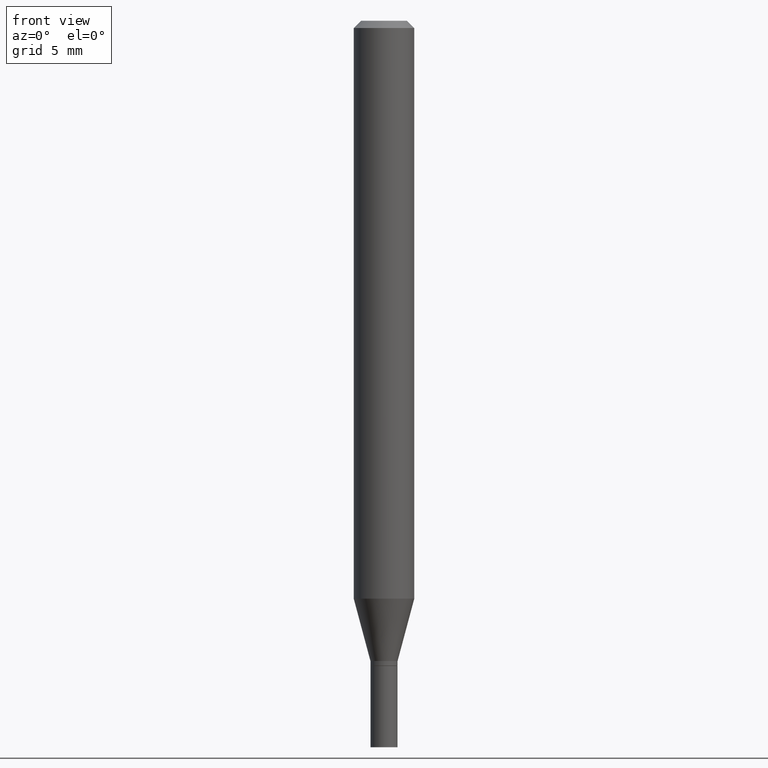
[diagram: clean part render]
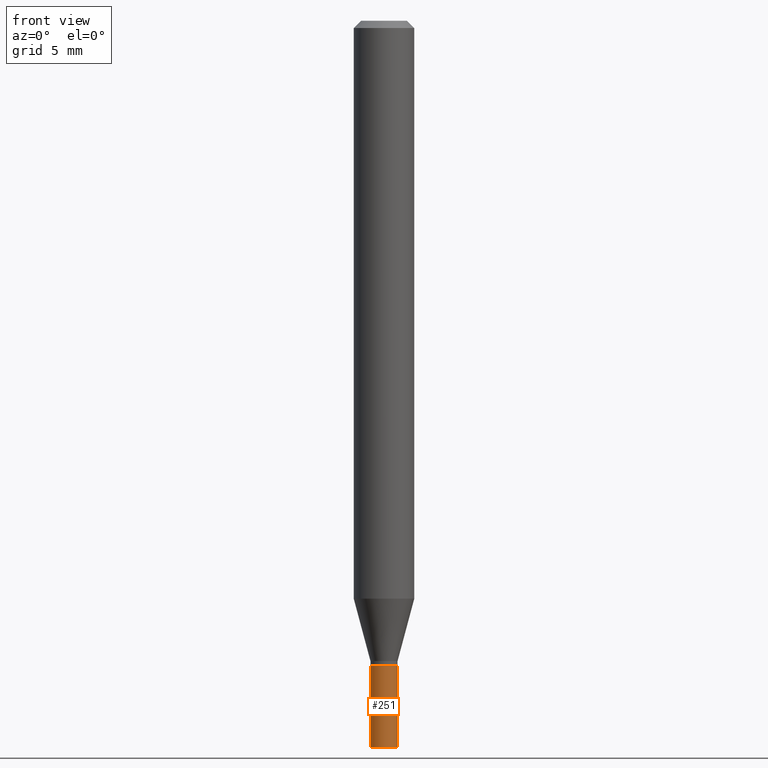
[diagram: same view with one face highlighted and labeled with its STEP entity id]
A machine part, front view. The second image highlights one B-rep face of the part: STEP entity #251.
In plain terms, the highlighted cylindrical surface (edge-blend (fillet) strip) has radius 0.7112 mm, axis along (-0, 0, 1).
Its self-contained STEP definition (entity closure, byte-faithful):
#11 = CYLINDRICAL_SURFACE ( 'NONE', #413, 0.02800000000000000405 ) ;
#13 = DIRECTION ( 'NONE',  ( -2.445468806185136597E-29, 3.491481338843145583E-15, 1.000000000000000000 ) ) ;
#16 = EDGE_CURVE ( 'NONE', #362, #271, #423, .T. ) ;
#24 = VERTEX_POINT ( 'NONE', #226 ) ;
#28 = ORIENTED_EDGE ( 'NONE', *, *, #202, .F. ) ;
#45 = DIRECTION ( 'NONE',  ( -2.445468806185136877E-29, 3.491481338843145188E-15, 1.000000000000000000 ) ) ;
#47 = CARTESIAN_POINT ( 'NONE',  ( 0.02800000000000000405, -1.955229549752154995E-16, 1.365329497222862141E-30 ) ) ;
#48 = DIRECTION ( 'NONE',  ( -2.445468806185136597E-29, 3.491481338843145583E-15, 1.000000000000000000 ) ) ;
#54 = EDGE_LOOP ( 'NONE', ( #28, #131, #176, #432 ) ) ;
#76 = VECTOR ( 'NONE', #384, 39.37007874015748143 ) ;
#83 = CARTESIAN_POINT ( 'NONE',  ( -0.02800000000000000405, 1.989519660128280808E-16, -1.377301825271373721E-30 ) ) ;
#86 = LINE ( 'NONE', #83, #208 ) ;
#89 = CIRCLE ( 'NONE', #315, 0.02800000000000000405 ) ;
#131 = ORIENTED_EDGE ( 'NONE', *, *, #16, .T. ) ;
#142 = CARTESIAN_POINT ( 'NONE',  ( 3.668203209277704895E-29, -5.237222008264718177E-15, -1.500000000000000222 ) ) ;
#156 = CARTESIAN_POINT ( 'NONE',  ( 0.000000000000000000, 0.000000000000000000, 0.000000000000000000 ) ) ;
#176 = ORIENTED_EDGE ( 'NONE', *, *, #309, .T. ) ;
#191 = EDGE_CURVE ( 'NONE', #24, #246, #89, .T. ) ;
#202 = EDGE_CURVE ( 'NONE', #362, #24, #86, .T. ) ;
#208 = VECTOR ( 'NONE', #45, 39.37007874015748143 ) ;
#223 = AXIS2_PLACEMENT_3D ( 'NONE', #142, #435, #294 ) ;
#226 = CARTESIAN_POINT ( 'NONE',  ( -0.02800000000000000405, -4.744985609789067093E-15, -1.332000000000000073 ) ) ;
#246 = VERTEX_POINT ( 'NONE', #301 ) ;
#251 = ADVANCED_FACE ( 'NONE', ( #344 ), #11, .T. ) ;
#271 = VERTEX_POINT ( 'NONE', #342 ) ;
#272 = DIRECTION ( 'NONE',  ( 1.000000000000000000, -6.982962677686266711E-15, 4.876176775795935232E-29 ) ) ;
#294 = DIRECTION ( 'NONE',  ( 1.000000000000000000, -6.982962677686262766E-15, 0.000000000000000000 ) ) ;
#301 = CARTESIAN_POINT ( 'NONE',  ( 0.02800000000000000405, -4.846176098314285600E-15, -1.332000000000000073 ) ) ;
#309 = EDGE_CURVE ( 'NONE', #271, #246, #375, .T. ) ;
#315 = AXIS2_PLACEMENT_3D ( 'NONE', #339, #13, #440 ) ;
#339 = CARTESIAN_POINT ( 'NONE',  ( 3.257364449838602072E-29, -4.650653143339070101E-15, -1.332000000000000073 ) ) ;
#342 = CARTESIAN_POINT ( 'NONE',  ( 0.02800000000000000405, -5.432744963239933676E-15, -1.500000000000000222 ) ) ;
#344 = FACE_OUTER_BOUND ( 'NONE', #54, .T. ) ;
#362 = VERTEX_POINT ( 'NONE', #456 ) ;
#375 = LINE ( 'NONE', #47, #76 ) ;
#384 = DIRECTION ( 'NONE',  ( -2.445468806185136877E-29, 3.491481338843145188E-15, 1.000000000000000000 ) ) ;
#413 = AXIS2_PLACEMENT_3D ( 'NONE', #156, #48, #272 ) ;
#423 = CIRCLE ( 'NONE', #223, 0.02800000000000000405 ) ;
#432 = ORIENTED_EDGE ( 'NONE', *, *, #191, .F. ) ;
#435 = DIRECTION ( 'NONE',  ( -2.445468806185136597E-29, 3.491481338843145583E-15, 1.000000000000000000 ) ) ;
#440 = DIRECTION ( 'NONE',  ( 1.000000000000000000, -6.982962677686262766E-15, 0.000000000000000000 ) ) ;
#456 = CARTESIAN_POINT ( 'NONE',  ( -0.02800000000000000405, -4.744985609789067093E-15, -1.500000000000000222 ) ) ;